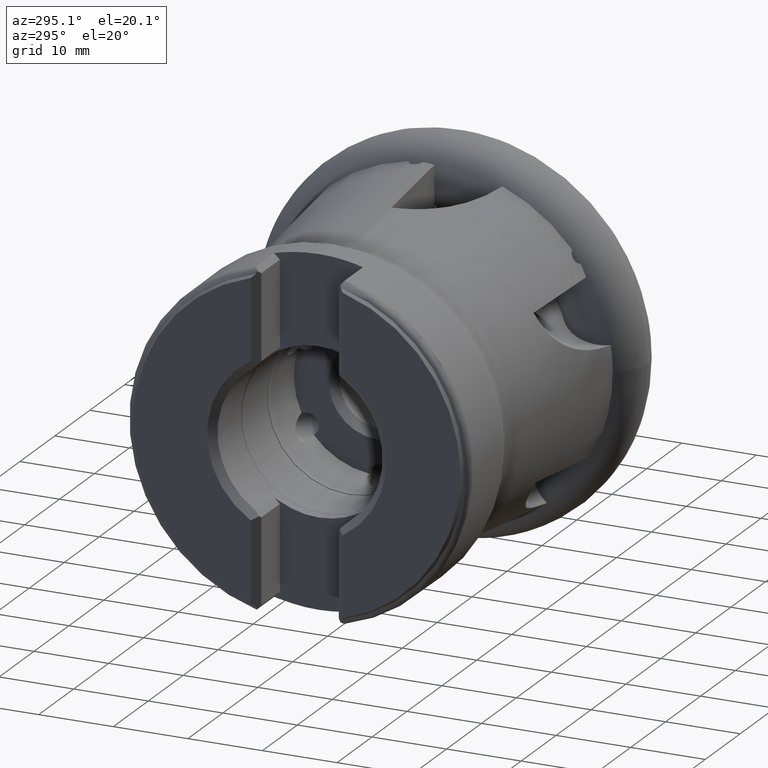
[diagram: clean part render]
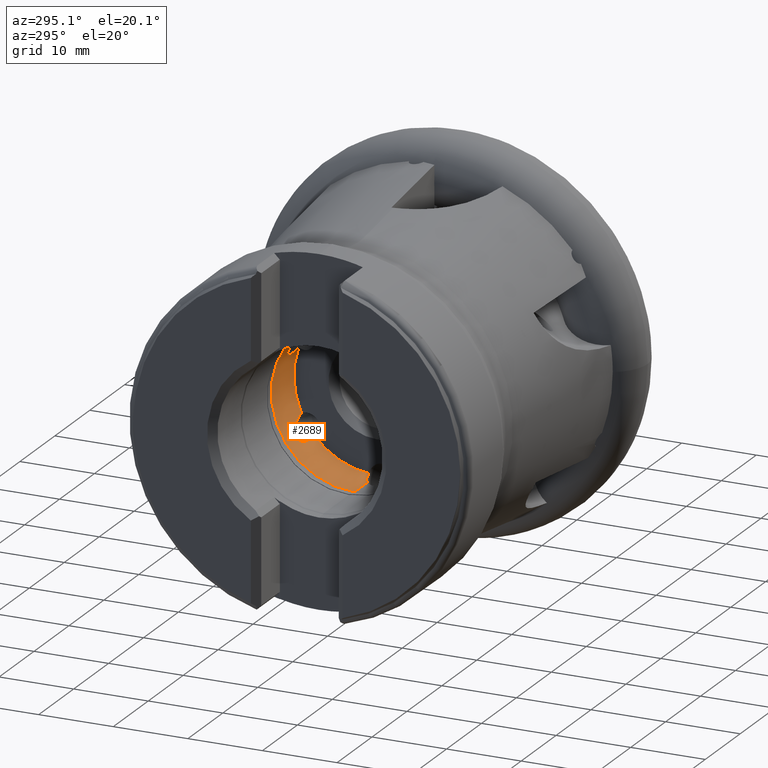
[diagram: same view with one face highlighted and labeled with its STEP entity id]
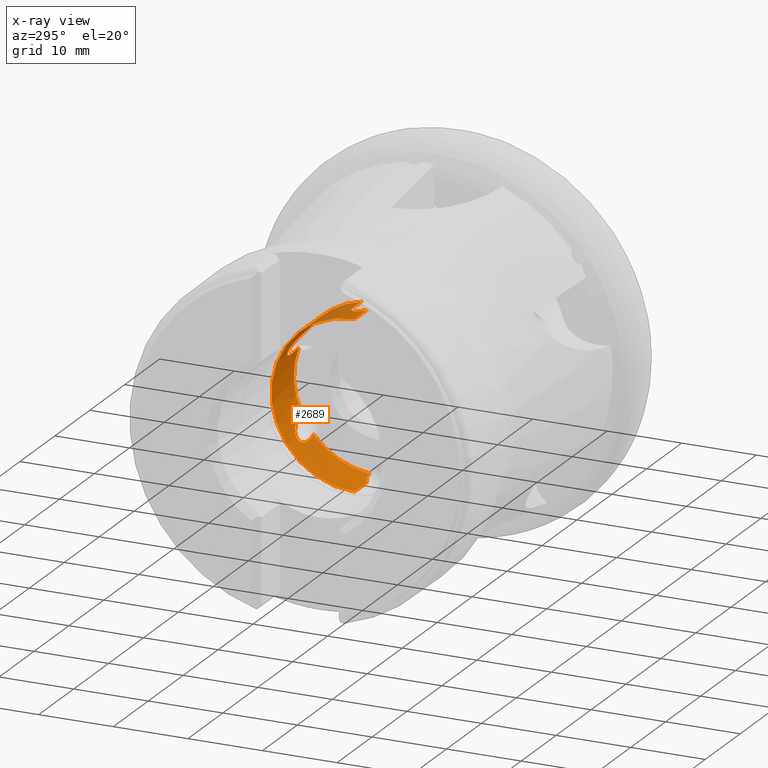
[diagram: x-ray of the same camera — body ghosted, the highlighted face saturated]
A machine part, auxiliary view. The second image highlights one B-rep face of the part: STEP entity #2689.
The next image is the same camera in x-ray: the body ghosted, the highlighted face saturated — about 13% of this face is hidden behind the body in this view.
In plain terms, the highlighted cylindrical surface (partial cylindrical patch) has radius 11.15 mm, axis along (1, -0, -0).
Its self-contained STEP definition (entity closure, byte-faithful):
#4 = B_SPLINE_CURVE_WITH_KNOTS ( 'NONE', 3,
 ( #1416, #1415, #1427, #1428, #1429, #1430, #1431, #1432, #1433, #1434, #1435, #1436, #1437, #1438, #1439, #1440, #1441, #1442, #1443, #1444, #1445, #1446, #1447, #1448, #1449, #1450, #1451, #1452 ),
 .UNSPECIFIED., .F., .F.,
 ( 4, 2, 2, 2, 2, 2, 2, 2, 2, 2, 2, 2, 2, 4 ),
 ( 0.001748100082414114600, 0.002549816764575239800, 0.003351533446736365200, 0.004153250128897490600, 0.004554108469978053300, 0.004954966811058616000, 0.005355825152139178700, 0.005556254322679459600, 0.005756683493219740500, 0.005957112663760022300, 0.006157541834300303200, 0.006558400175380859800, 0.007360116857541971300, 0.008161833539703081100 ),
 .UNSPECIFIED. ) ;
#27 = B_SPLINE_CURVE_WITH_KNOTS ( 'NONE', 3,
 ( #1403, #1404, #1409, #1410, #1411, #1412, #1413, #1414 ),
 .UNSPECIFIED., .F., .F.,
 ( 4, 2, 2, 4 ),
 ( 0.005664464099195545100, 0.006423294877634364000, 0.007182125656073183800, 0.008699787212950822400 ),
 .UNSPECIFIED. ) ;
#51 = B_SPLINE_CURVE_WITH_KNOTS ( 'NONE', 3,
 ( #1400, #1408, #1417, #1418, #1419, #1420, #1421, #1422, #1423, #1424 ),
 .UNSPECIFIED., .F., .F.,
 ( 4, 2, 2, 2, 4 ),
 ( 0.0000000000000000000, 0.0008788755939066366400, 0.001757751187813273300, 0.002636626781719909700, 0.003515502375626546600 ),
 .UNSPECIFIED. ) ;
#61 = B_SPLINE_CURVE_WITH_KNOTS ( 'NONE', 3,
 ( #1426, #1425, #1453, #1454, #1455, #1456, #1457, #1458, #1459, #1460, #1461, #1462, #1463, #1464, #1465, #1466, #1467, #1468 ),
 .UNSPECIFIED., .F., .F.,
 ( 4, 2, 2, 2, 2, 2, 2, 2, 4 ),
 ( 0.004095927046527466800, 0.005179505788307446300, 0.006263084530087425700, 0.006804873900977410200, 0.007346663271867393900, 0.007617557957312386100, 0.007888452642757379200, 0.008159347328202372400, 0.008430242013647363700 ),
 .UNSPECIFIED. ) ;
#290 = ORIENTED_EDGE ( 'NONE', *, *, #1788, .F. ) ;
#291 = ORIENTED_EDGE ( 'NONE', *, *, #3359, .F. ) ;
#292 = ORIENTED_EDGE ( 'NONE', *, *, #1795, .T. ) ;
#293 = ORIENTED_EDGE ( 'NONE', *, *, #3360, .T. ) ;
#294 = ORIENTED_EDGE ( 'NONE', *, *, #3352, .T. ) ;
#295 = ORIENTED_EDGE ( 'NONE', *, *, #1685, .T. ) ;
#296 = ORIENTED_EDGE ( 'NONE', *, *, #3361, .T. ) ;
#297 = ORIENTED_EDGE ( 'NONE', *, *, #3350, .T. ) ;
#298 = ORIENTED_EDGE ( 'NONE', *, *, #3362, .T. ) ;
#299 = ORIENTED_EDGE ( 'NONE', *, *, #1686, .T. ) ;
#300 = ORIENTED_EDGE ( 'NONE', *, *, #3357, .T. ) ;
#301 = ORIENTED_EDGE ( 'NONE', *, *, #3363, .T. ) ;
#302 = ORIENTED_EDGE ( 'NONE', *, *, #1691, .T. ) ;
#818 = EDGE_LOOP ( 'NONE', ( #290, #291, #292, #293, #294, #295, #296, #297, #298, #299, #300, #301, #302 ) ) ;
#866 = VERTEX_POINT ( 'NONE', #2627 ) ;
#903 = VERTEX_POINT ( 'NONE', #2648 ) ;
#928 = VERTEX_POINT ( 'NONE', #2668 ) ;
#929 = VERTEX_POINT ( 'NONE', #7573 ) ;
#930 = VERTEX_POINT ( 'NONE', #7583 ) ;
#1018 = CARTESIAN_POINT ( 'NONE',  ( 0.0000000000000000000, 1.365481181049298400E-015, 11.14999999999999700 ) ) ;
#1023 = DIRECTION ( 'NONE',  ( 1.000000000000000000, -0.0000000000000000000, -0.0000000000000000000 ) ) ;
#1061 = CARTESIAN_POINT ( 'NONE',  ( 0.0000000000000000000, 0.0000000000000000000, -11.14999999999999700 ) ) ;
#1066 = DIRECTION ( 'NONE',  ( 1.000000000000000000, -0.0000000000000000000, -0.0000000000000000000 ) ) ;
#1371 = CARTESIAN_POINT ( 'NONE',  ( -25.84999999999999800, 0.0000000000000000000, 0.0000000000000000000 ) ) ;
#1372 = DIRECTION ( 'NONE',  ( 1.000000000000000000, -0.0000000000000000000, -0.0000000000000000000 ) ) ;
#1373 = DIRECTION ( 'NONE',  ( 0.0000000000000000000, 0.0000000000000000000, -1.000000000000000000 ) ) ;
#1379 = CARTESIAN_POINT ( 'NONE',  ( -25.84999999999999800, 0.0000000000000000000, 0.0000000000000000000 ) ) ;
#1380 = DIRECTION ( 'NONE',  ( 1.000000000000000000, -0.0000000000000000000, -0.0000000000000000000 ) ) ;
#1381 = DIRECTION ( 'NONE',  ( 0.0000000000000000000, 0.0000000000000000000, -1.000000000000000000 ) ) ;
#1397 = CARTESIAN_POINT ( 'NONE',  ( -25.84999999999999800, 0.0000000000000000000, 0.0000000000000000000 ) ) ;
#1398 = DIRECTION ( 'NONE',  ( 1.000000000000000000, -0.0000000000000000000, -0.0000000000000000000 ) ) ;
#1399 = DIRECTION ( 'NONE',  ( 0.0000000000000000000, 0.0000000000000000000, -1.000000000000000000 ) ) ;
#1400 = CARTESIAN_POINT ( 'NONE',  ( -29.04398231743204300, 9.497243971403584300, -5.841648478609286600 ) ) ;
#1403 = CARTESIAN_POINT ( 'NONE',  ( -28.67635802961098100, 1.390289344418008500E-014, -11.14999999999999700 ) ) ;
#1404 = CARTESIAN_POINT ( 'NONE',  ( -28.47129581245578600, 0.1493265803890454800, -11.14999999999999700 ) ) ;
#1405 = CARTESIAN_POINT ( 'NONE',  ( -32.29904181246355000, 0.0000000000000000000, 0.0000000000000000000 ) ) ;
#1406 = DIRECTION ( 'NONE',  ( 1.000000000000000000, -0.0000000000000000000, -0.0000000000000000000 ) ) ;
#1407 = DIRECTION ( 'NONE',  ( 0.0000000000000000000, 0.0000000000000000000, -1.000000000000000000 ) ) ;
#1408 = CARTESIAN_POINT ( 'NONE',  ( -28.83312764952446400, 9.606989541988415500, -5.663226161271705200 ) ) ;
#1409 = CARTESIAN_POINT ( 'NONE',  ( -28.25338554869967900, 0.2771363001163235100, -11.14712741967601900 ) ) ;
#1410 = CARTESIAN_POINT ( 'NONE',  ( -27.79970030495788800, 0.5028674256117131600, -11.13922701948361100 ) ) ;
#1411 = CARTESIAN_POINT ( 'NONE',  ( -27.56319443351354800, 0.6004787471799850600, -11.13413009756152400 ) ) ;
#1412 = CARTESIAN_POINT ( 'NONE',  ( -26.84681269719837700, 0.8497084897726554500, -11.11882217248614400 ) ) ;
#1413 = CARTESIAN_POINT ( 'NONE',  ( -26.35486203186299300, 0.9620393436864737000, -11.10860671277265200 ) ) ;
#1414 = CARTESIAN_POINT ( 'NONE',  ( -25.84999999999999800, 1.026285204183903900, -11.10266808833233100 ) ) ;
#1415 = CARTESIAN_POINT ( 'NONE',  ( -26.11077648730848100, 10.52293799678158800, 3.686970931857150600 ) ) ;
#1416 = CARTESIAN_POINT ( 'NONE',  ( -25.85000000000006500, 10.50314091441261200, 3.742530017513786300 ) ) ;
#1417 = CARTESIAN_POINT ( 'NONE',  ( -28.59492817681417200, 9.691641781484689100, -5.515155061032057700 ) ) ;
#1418 = CARTESIAN_POINT ( 'NONE',  ( -28.08885170938986100, 9.836043742653606300, -5.253294134203030400 ) ) ;
#1419 = CARTESIAN_POINT ( 'NONE',  ( -27.82054345719631900, 9.894537229305886000, -5.141198247649159100 ) ) ;
#1420 = CARTESIAN_POINT ( 'NONE',  ( -27.27649852546963400, 9.990702921013282300, -4.951731166754477400 ) ) ;
#1421 = CARTESIAN_POINT ( 'NONE',  ( -26.99831655212651800, 10.02885613964372500, -4.873351010607786200 ) ) ;
#1422 = CARTESIAN_POINT ( 'NONE',  ( -26.43133829563036100, 10.08989164759506900, -4.745691949763788400 ) ) ;
#1423 = CARTESIAN_POINT ( 'NONE',  ( -26.14074868388731000, 10.11279754702298000, -4.696297094191830700 ) ) ;
#1424 = CARTESIAN_POINT ( 'NONE',  ( -25.84999999999999800, 10.12833521637436900, -4.662544985815226400 ) ) ;
#1425 = CARTESIAN_POINT ( 'NONE',  ( -26.19701432245527400, 2.087643566960830600, 10.95310021499301500 ) ) ;
#1426 = CARTESIAN_POINT ( 'NONE',  ( -25.85000000000008300, 2.010444387613525800, 10.96725186016593800 ) ) ;
#1427 = CARTESIAN_POINT ( 'NONE',  ( -26.37431802116811100, 10.53871115037358700, 3.641339445854533200 ) ) ;
#1428 = CARTESIAN_POINT ( 'NONE',  ( -26.90781700803470500, 10.56191263359133400, 3.573483901087066700 ) ) ;
#1429 = CARTESIAN_POINT ( 'NONE',  ( -27.17886789708540000, 10.56936810020459600, 3.551196313932879700 ) ) ;
#1430 = CARTESIAN_POINT ( 'NONE',  ( -27.71746349096955700, 10.57325194813564900, 3.539615874492416700 ) ) ;
#1431 = CARTESIAN_POINT ( 'NONE',  ( -27.98611932669086100, 10.57001730092231100, 3.549472931891046700 ) ) ;
#1432 = CARTESIAN_POINT ( 'NONE',  ( -28.38742835871637400, 10.55118304584027700, 3.604915712215572400 ) ) ;
#1433 = CARTESIAN_POINT ( 'NONE',  ( -28.52187738196035800, 10.54241166520139600, 3.630627279067000200 ) ) ;
#1434 = CARTESIAN_POINT ( 'NONE',  ( -28.78164581118571900, 10.51782392189050000, 3.701253585771704800 ) ) ;
#1435 = CARTESIAN_POINT ( 'NONE',  ( -28.90766240235067400, 10.50214238186717000, 3.745879219708260000 ) ) ;
#1436 = CARTESIAN_POINT ( 'NONE',  ( -29.14660110796578300, 10.45839705546569900, 3.866333763124870000 ) ) ;
#1437 = CARTESIAN_POINT ( 'NONE',  ( -29.26012587269601500, 10.43005175994991000, 3.943049317843273300 ) ) ;
#1438 = CARTESIAN_POINT ( 'NONE',  ( -29.39410672196286400, 10.37272651862012800, 4.090455228878487200 ) ) ;
#1439 = CARTESIAN_POINT ( 'NONE',  ( -29.43133092257737700, 10.35171113644741700, 4.143479634805205900 ) ) ;
#1440 = CARTESIAN_POINT ( 'NONE',  ( -29.48861130427206600, 10.30497440226860600, 4.258385786314308400 ) ) ;
#1441 = CARTESIAN_POINT ( 'NONE',  ( -29.50819272965040700, 10.27914874327509400, 4.320435805717724300 ) ) ;
#1442 = CARTESIAN_POINT ( 'NONE',  ( -29.52666661171066300, 10.22603871606427000, 4.444681835098718300 ) ) ;
#1443 = CARTESIAN_POINT ( 'NONE',  ( -29.52593741848662400, 10.19794822638351100, 4.508762033203474600 ) ) ;
#1444 = CARTESIAN_POINT ( 'NONE',  ( -29.50782596597768000, 10.14244737861268700, 4.632261248259664100 ) ) ;
#1445 = CARTESIAN_POINT ( 'NONE',  ( -29.49074918437026600, 10.11475454566699900, 4.692382189645353000 ) ) ;
#1446 = CARTESIAN_POINT ( 'NONE',  ( -29.42061550319586900, 10.03181018828759400, 4.868482810623665300 ) ) ;
#1447 = CARTESIAN_POINT ( 'NONE',  ( -29.35218749913832100, 9.979739178137576200, 4.973884151062473600 ) ) ;
#1448 = CARTESIAN_POINT ( 'NONE',  ( -29.10935024201403800, 9.828888937273044100, 5.269185203247847200 ) ) ;
#1449 = CARTESIAN_POINT ( 'NONE',  ( -28.90671336199672900, 9.740545445507198300, 5.428659455071668000 ) ) ;
#1450 = CARTESIAN_POINT ( 'NONE',  ( -28.46640960746367500, 9.579273358750597800, 5.708422809626236800 ) ) ;
#1451 = CARTESIAN_POINT ( 'NONE',  ( -28.23201034260952000, 9.508519569139027200, 5.824479210686188700 ) ) ;
#1452 = CARTESIAN_POINT ( 'NONE',  ( -27.98973702992650200, 9.445642024903781600, 5.924723346905871300 ) ) ;
#1453 = CARTESIAN_POINT ( 'NONE',  ( -26.54667474797005900, 2.145817957312986700, 10.94162944135593700 ) ) ;
#1454 = CARTESIAN_POINT ( 'NONE',  ( -27.25244175884640500, 2.216250810721188000, 10.92758078816402200 ) ) ;
#1455 = CARTESIAN_POINT ( 'NONE',  ( -27.60837017254117900, 2.229786501674366800, 10.92480164639264300 ) ) ;
#1456 = CARTESIAN_POINT ( 'NONE',  ( -28.15073811133353800, 2.189817497017464200, 10.93285799979924100 ) ) ;
#1457 = CARTESIAN_POINT ( 'NONE',  ( -28.33082552677296600, 2.166242625544923400, 10.93761919215378100 ) ) ;
#1458 = CARTESIAN_POINT ( 'NONE',  ( -28.68374689112923500, 2.087204844218274200, 10.95297661111216700 ) ) ;
#1459 = CARTESIAN_POINT ( 'NONE',  ( -28.85842290505720700, 2.031698990684277300, 10.96366060910020200 ) ) ;
#1460 = CARTESIAN_POINT ( 'NONE',  ( -29.09870530240830900, 1.906772648444371400, 10.98583209193619800 ) ) ;
#1461 = CARTESIAN_POINT ( 'NONE',  ( -29.17605079941162700, 1.857328575049580700, 10.99437561006664600 ) ) ;
#1462 = CARTESIAN_POINT ( 'NONE',  ( -29.31372024957055100, 1.741151500250488300, 11.01337168827509700 ) ) ;
#1463 = CARTESIAN_POINT ( 'NONE',  ( -29.37556215391199300, 1.672703635609085600, 11.02409056330363400 ) ) ;
#1464 = CARTESIAN_POINT ( 'NONE',  ( -29.46929532748601600, 1.519249245296691500, 11.04628407796782400 ) ) ;
#1465 = CARTESIAN_POINT ( 'NONE',  ( -29.50164418736122900, 1.432420885287362100, 11.05796849632439400 ) ) ;
#1466 = CARTESIAN_POINT ( 'NONE',  ( -29.52946018594550300, 1.254873940376932700, 11.07952112016007400 ) ) ;
#1467 = CARTESIAN_POINT ( 'NONE',  ( -29.52562166529728300, 1.162447725002388400, 11.08959822653085500 ) ) ;
#1468 = CARTESIAN_POINT ( 'NONE',  ( -29.50799385159873000, 1.073567921358739700, 11.09819588573924800 ) ) ;
#1685 = EDGE_CURVE ( 'NONE', #6011, #6008, #3095, .T. ) ;
#1686 = EDGE_CURVE ( 'NONE', #6004, #5988, #3164, .T. ) ;
#1691 = EDGE_CURVE ( 'NONE', #6015, #930, #3136, .T. ) ;
#1788 = EDGE_CURVE ( 'NONE', #2024, #930, #4807, .T. ) ;
#1795 = EDGE_CURVE ( 'NONE', #2041, #2081, #4816, .T. ) ;
#2024 = VERTEX_POINT ( 'NONE', #5119 ) ;
#2041 = VERTEX_POINT ( 'NONE', #5136 ) ;
#2081 = VERTEX_POINT ( 'NONE', #5176 ) ;
#2627 = CARTESIAN_POINT ( 'NONE',  ( -25.84999999999999800, 10.12833521637436900, -4.662544985815226400 ) ) ;
#2648 = CARTESIAN_POINT ( 'NONE',  ( -25.85000000000008300, 2.010444387613525800, 10.96725186016593800 ) ) ;
#2668 = CARTESIAN_POINT ( 'NONE',  ( -25.84999999999999800, 1.026285204183903900, -11.10266808833233100 ) ) ;
#2689 = ADVANCED_FACE ( 'NONE', ( #4936 ), #4939, .F. ) ;
#3095 = B_SPLINE_CURVE_WITH_KNOTS ( 'NONE', 3,
 ( #5366, #5365, #5369, #5370, #5371, #5372, #5373, #5374, #5375, #5376, #5377, #5378, #5379, #5380, #5381, #5382, #5383, #5384, #5385, #5386, #5387, #5388 ),
 .UNSPECIFIED., .F., .F.,
 ( 4, 2, 2, 2, 2, 2, 2, 2, 2, 2, 4 ),
 ( 0.01129947862673590600, 0.01259747586947657100, 0.01324647449084690400, 0.01389547311221723700, 0.01421997242290240100, 0.01454447173358756700, 0.01486897104427273500, 0.01519347035495790000, 0.01551796966564306400, 0.01584246897632823200, 0.01649146759769855700 ),
 .UNSPECIFIED. ) ;
#3136 = B_SPLINE_CURVE_WITH_KNOTS ( 'NONE', 3,
 ( #5368, #5423, #5429, #5430, #5431, #5432, #5433, #5434 ),
 .UNSPECIFIED., .F., .F.,
 ( 4, 2, 2, 4 ),
 ( 0.008430242013647363700, 0.008776689395218117600, 0.009123136776788871500, 0.009816031539930379300 ),
 .UNSPECIFIED. ) ;
#3164 = B_SPLINE_CURVE_WITH_KNOTS ( 'NONE', 3,
 ( #5390, #5389, #5331, #5391, #5392, #5393 ),
 .UNSPECIFIED., .F., .F.,
 ( 4, 2, 4 ),
 ( 0.008161833539703081100, 0.009270108064508841800, 0.01037838258931460100 ),
 .UNSPECIFIED. ) ;
#3350 = EDGE_CURVE ( 'NONE', #866, #929, #4428, .T. ) ;
#3352 = EDGE_CURVE ( 'NONE', #928, #6011, #4429, .T. ) ;
#3357 = EDGE_CURVE ( 'NONE', #5988, #903, #4430, .T. ) ;
#3359 = EDGE_CURVE ( 'NONE', #2041, #2024, #4431, .T. ) ;
#3360 = EDGE_CURVE ( 'NONE', #2081, #928, #27, .T. ) ;
#3361 = EDGE_CURVE ( 'NONE', #6008, #866, #51, .T. ) ;
#3362 = EDGE_CURVE ( 'NONE', #929, #6004, #4, .T. ) ;
#3363 = EDGE_CURVE ( 'NONE', #903, #6015, #61, .T. ) ;
#4428 = CIRCLE ( 'NONE', #6416, 11.14999999999999700 ) ;
#4429 = CIRCLE ( 'NONE', #6417, 11.14999999999999700 ) ;
#4430 = CIRCLE ( 'NONE', #6418, 11.14999999999999700 ) ;
#4431 = CIRCLE ( 'NONE', #6419, 11.14999999999999700 ) ;
#4807 = LINE ( 'NONE', #1018, #4813 ) ;
#4813 = VECTOR ( 'NONE', #1023, 1000.000000000000000 ) ;
#4815 = VECTOR ( 'NONE', #1066, 1000.000000000000000 ) ;
#4816 = LINE ( 'NONE', #1061, #4815 ) ;
#4936 = FACE_OUTER_BOUND ( 'NONE', #818, .T. ) ;
#4939 = CYLINDRICAL_SURFACE ( 'NONE', #7547, 11.14999999999999700 ) ;
#5119 = CARTESIAN_POINT ( 'NONE',  ( -32.29904181246355000, 1.365481181049298400E-015, 11.14999999999999700 ) ) ;
#5136 = CARTESIAN_POINT ( 'NONE',  ( -32.29904181246355000, 0.0000000000000000000, -11.14999999999999700 ) ) ;
#5176 = CARTESIAN_POINT ( 'NONE',  ( -28.67635802961098100, 1.390289344418008500E-014, -11.14999999999999700 ) ) ;
#5331 = CARTESIAN_POINT ( 'NONE',  ( -27.30048037178545400, 9.286205800983570000, 6.172464928973211900 ) ) ;
#5365 = CARTESIAN_POINT ( 'NONE',  ( -26.27311251018355200, 8.430688992230651400, -7.297612008520626900 ) ) ;
#5366 = CARTESIAN_POINT ( 'NONE',  ( -25.85000000000001600, 8.492696526799052800, -7.224721842652161100 ) ) ;
#5368 = CARTESIAN_POINT ( 'NONE',  ( -29.50799385159873000, 1.073567921358739700, 11.09819588573924800 ) ) ;
#5369 = CARTESIAN_POINT ( 'NONE',  ( -26.69815434034056900, 8.386294578931233100, -7.348026133489222300 ) ) ;
#5370 = CARTESIAN_POINT ( 'NONE',  ( -27.33944682268536800, 8.356139327297093200, -7.382253500697592200 ) ) ;
#5371 = CARTESIAN_POINT ( 'NONE',  ( -27.55384335460019000, 8.352255183559771400, -7.386635643239794800 ) ) ;
#5372 = CARTESIAN_POINT ( 'NONE',  ( -27.98441115894898700, 8.361873632781772900, -7.375745530227480800 ) ) ;
#5373 = CARTESIAN_POINT ( 'NONE',  ( -28.20230383339458400, 8.375272810470818300, -7.360644965159662200 ) ) ;
#5374 = CARTESIAN_POINT ( 'NONE',  ( -28.52538457300686400, 8.416973850428028900, -7.312831082381585200 ) ) ;
#5375 = CARTESIAN_POINT ( 'NONE',  ( -28.63161935666055100, 8.434408675056326700, -7.292765248765737100 ) ) ;
#5376 = CARTESIAN_POINT ( 'NONE',  ( -28.83995953349401400, 8.479082668874886200, -7.240775632890181300 ) ) ;
#5377 = CARTESIAN_POINT ( 'NONE',  ( -28.94252876489460700, 8.506490920030835000, -7.208666416013618200 ) ) ;
#5378 = CARTESIAN_POINT ( 'NONE',  ( -29.13435594260353400, 8.574033308788591200, -7.128198376147615500 ) ) ;
#5379 = CARTESIAN_POINT ( 'NONE',  ( -29.22582061552089500, 8.615047836921830200, -7.078807494737612100 ) ) ;
#5380 = CARTESIAN_POINT ( 'NONE',  ( -29.38026262222250300, 8.713085780306563800, -6.957779887652702800 ) ) ;
#5381 = CARTESIAN_POINT ( 'NONE',  ( -29.44370627996646300, 8.771411339359444200, -6.884425906739378000 ) ) ;
#5382 = CARTESIAN_POINT ( 'NONE',  ( -29.51896957248315400, 8.896320462558284300, -6.722236173855737500 ) ) ;
#5383 = CARTESIAN_POINT ( 'NONE',  ( -29.53119600996198500, 8.963816387129988100, -6.632088920590367000 ) ) ;
#5384 = CARTESIAN_POINT ( 'NONE',  ( -29.50858154927359000, 9.092956694500490000, -6.453893880808417200 ) ) ;
#5385 = CARTESIAN_POINT ( 'NONE',  ( -29.47586024248578000, 9.153435327355747800, -6.367666861985780400 ) ) ;
#5386 = CARTESIAN_POINT ( 'NONE',  ( -29.33808903109381600, 9.323036444943243200, -6.119128179367095300 ) ) ;
#5387 = CARTESIAN_POINT ( 'NONE',  ( -29.19968625292675700, 9.416203236509064200, -5.973403005389434900 ) ) ;
#5388 = CARTESIAN_POINT ( 'NONE',  ( -29.04398231743204300, 9.497243971403584300, -5.841648478609286600 ) ) ;
#5389 = CARTESIAN_POINT ( 'NONE',  ( -27.65482402828719100, 9.358721567828569100, 6.063298513053036100 ) ) ;
#5390 = CARTESIAN_POINT ( 'NONE',  ( -27.98973702992650200, 9.445642024903781600, 5.924723346905871300 ) ) ;
#5391 = CARTESIAN_POINT ( 'NONE',  ( -26.58168891210726100, 9.171521175036398100, 6.341619731069029000 ) ) ;
#5392 = CARTESIAN_POINT ( 'NONE',  ( -26.21788367091343400, 9.129205009433674100, 6.401744000277974000 ) ) ;
#5393 = CARTESIAN_POINT ( 'NONE',  ( -25.84999999999999800, 9.102050012190783700, 6.440123102517350900 ) ) ;
#5423 = CARTESIAN_POINT ( 'NONE',  ( -29.48544962969325300, 0.9598994852434559200, 11.10919143744294900 ) ) ;
#5429 = CARTESIAN_POINT ( 'NONE',  ( -29.44134862890345900, 0.8512803212479467300, 11.11791857147292000 ) ) ;
#5430 = CARTESIAN_POINT ( 'NONE',  ( -29.32986078872163200, 0.6488453924457231500, 11.13156732917464500 ) ) ;
#5431 = CARTESIAN_POINT ( 'NONE',  ( -29.26151061568711500, 0.5534799073460260300, 11.13660321267918200 ) ) ;
#5432 = CARTESIAN_POINT ( 'NONE',  ( -29.03877546254778300, 0.2892484408185171400, 11.14764189582049300 ) ) ;
#5433 = CARTESIAN_POINT ( 'NONE',  ( -28.86259539458263000, 0.1356182978888146000, 11.14999999999999700 ) ) ;
#5434 = CARTESIAN_POINT ( 'NONE',  ( -28.67635802961091700, 1.789560752036854300E-014, 11.14999999999999700 ) ) ;
#5988 = VERTEX_POINT ( 'NONE', #7363 ) ;
#6004 = VERTEX_POINT ( 'NONE', #7376 ) ;
#6008 = VERTEX_POINT ( 'NONE', #7379 ) ;
#6011 = VERTEX_POINT ( 'NONE', #7382 ) ;
#6015 = VERTEX_POINT ( 'NONE', #7384 ) ;
#6416 = AXIS2_PLACEMENT_3D ( 'NONE', #1371, #1372, #1373 ) ;
#6417 = AXIS2_PLACEMENT_3D ( 'NONE', #1379, #1380, #1381 ) ;
#6418 = AXIS2_PLACEMENT_3D ( 'NONE', #1397, #1398, #1399 ) ;
#6419 = AXIS2_PLACEMENT_3D ( 'NONE', #1405, #1406, #1407 ) ;
#6537 = DIRECTION ( 'NONE',  ( 1.000000000000000000, -0.0000000000000000000, -0.0000000000000000000 ) ) ;
#6538 = DIRECTION ( 'NONE',  ( 0.0000000000000000000, 0.0000000000000000000, -1.000000000000000000 ) ) ;
#6541 = CARTESIAN_POINT ( 'NONE',  ( 0.0000000000000000000, 0.0000000000000000000, 0.0000000000000000000 ) ) ;
#7363 = CARTESIAN_POINT ( 'NONE',  ( -25.84999999999999800, 9.102050012190783700, 6.440123102517350900 ) ) ;
#7376 = CARTESIAN_POINT ( 'NONE',  ( -27.98973702992650200, 9.445642024903781600, 5.924723346905871300 ) ) ;
#7379 = CARTESIAN_POINT ( 'NONE',  ( -29.04398231743204300, 9.497243971403584300, -5.841648478609286600 ) ) ;
#7382 = CARTESIAN_POINT ( 'NONE',  ( -25.85000000000001600, 8.492696526799052800, -7.224721842652161100 ) ) ;
#7384 = CARTESIAN_POINT ( 'NONE',  ( -29.50799385159873000, 1.073567921358739700, 11.09819588573924800 ) ) ;
#7547 = AXIS2_PLACEMENT_3D ( 'NONE', #6541, #6537, #6538 ) ;
#7573 = CARTESIAN_POINT ( 'NONE',  ( -25.85000000000006500, 10.50314091441261200, 3.742530017513786300 ) ) ;
#7583 = CARTESIAN_POINT ( 'NONE',  ( -28.67635802961091700, 1.789560752036854300E-014, 11.14999999999999700 ) ) ;